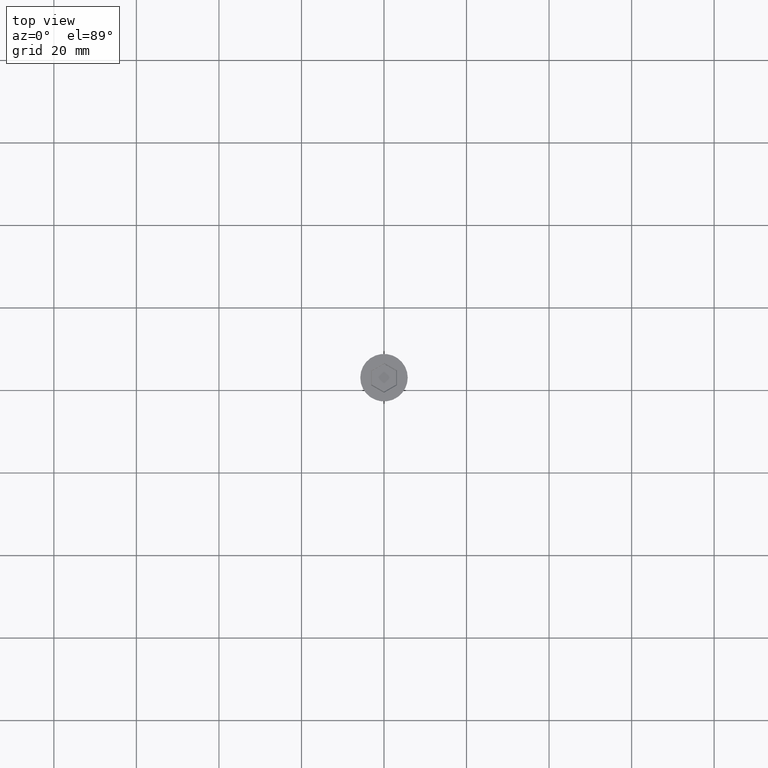
[diagram: clean part render]
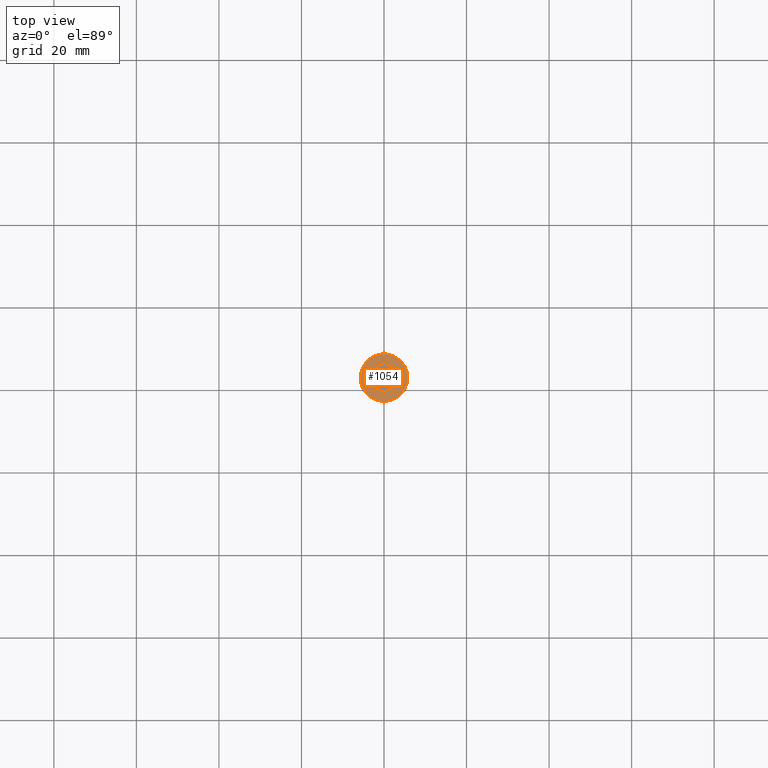
[diagram: same view with one face highlighted and labeled with its STEP entity id]
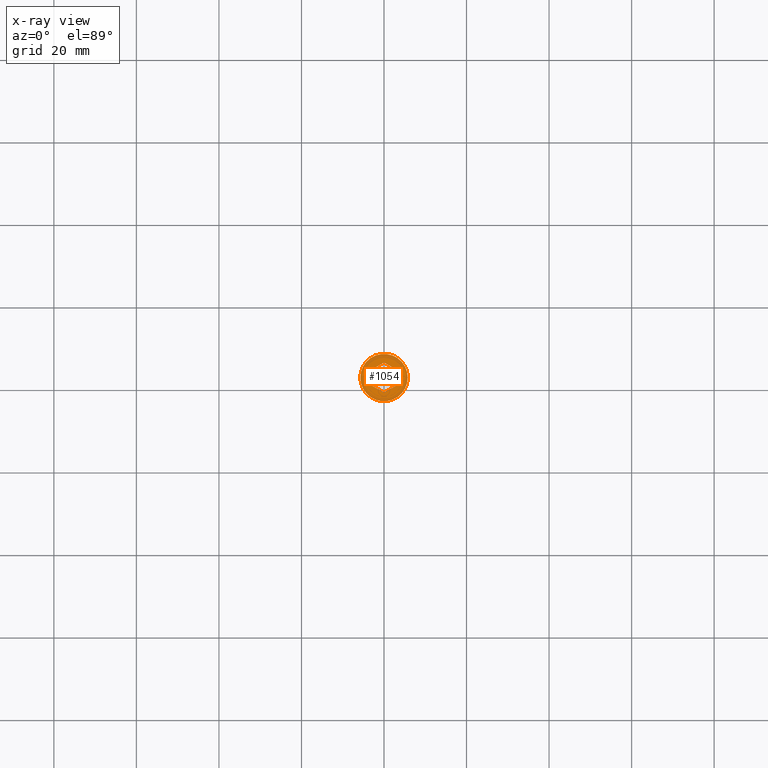
[diagram: x-ray of the same camera — body ghosted, the highlighted face saturated]
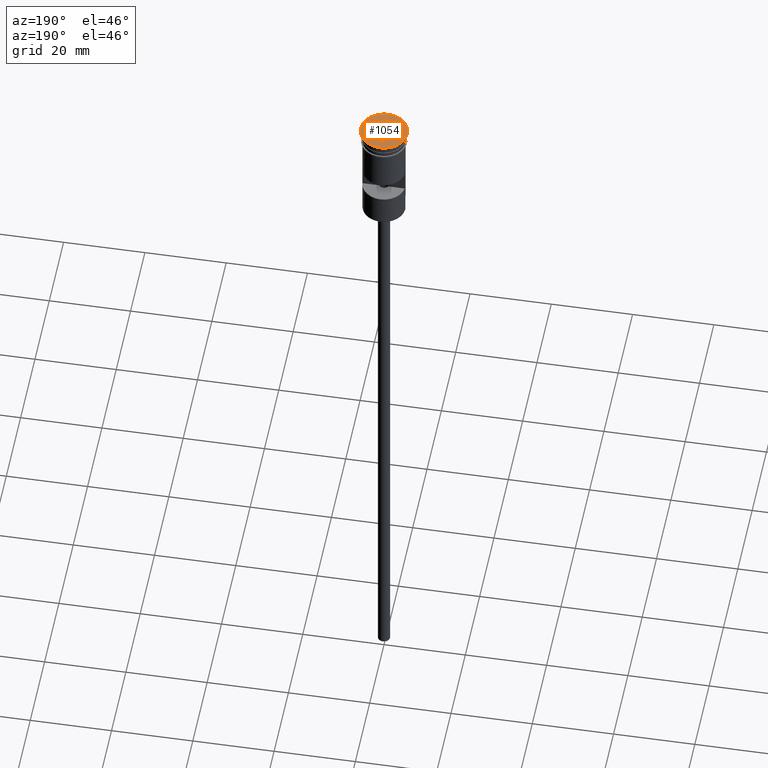
[diagram: same view with one face highlighted and labeled with its STEP entity id]
A machine part, top view. The second image highlights one B-rep face of the part: STEP entity #1054.
The next image is the same camera in x-ray: the body ghosted, the highlighted face saturated — about 0% of this face is hidden behind the body in this view.
A second angle (auxiliary view) of the same face is appended — the face is thin or edge-on in the first view.
In plain terms, the highlighted planar face has unit normal (0, -0, 1).
Its self-contained STEP definition (entity closure, byte-faithful):
#26 = CARTESIAN_POINT ( 'NONE',  ( -0.09999999999998934741, 3.579571668975661147, 0.000000000000000000 ) ) ;
#49 = CARTESIAN_POINT ( 'NONE',  ( -3.149999999999978595, 1.703183294109395840, 0.000000000000000000 ) ) ;
#56 = DIRECTION ( 'NONE',  ( -2.546295930062981593E-16, -1.000000000000000000, 0.000000000000000000 ) ) ;
#97 = CARTESIAN_POINT ( 'NONE',  ( -3.149999999999978595, 1.818653347947308374, 0.000000000000000000 ) ) ;
#118 = VERTEX_POINT ( 'NONE', #1156 ) ;
#129 = DIRECTION ( 'NONE',  ( 1.000000000000000000, 0.000000000000000000, 0.000000000000000000 ) ) ;
#142 = EDGE_CURVE ( 'NONE', #1530, #741, #1259, .T. ) ;
#145 = CARTESIAN_POINT ( 'NONE',  ( -3.095704393061636416E-16, 3.637306695894617192, 0.000000000000000000 ) ) ;
#167 = AXIS2_PLACEMENT_3D ( 'NONE', #602, #1574, #952 ) ;
#172 = CARTESIAN_POINT ( 'NONE',  ( 3.049999999999990052, 1.876388374866264863, 0.000000000000000000 ) ) ;
#190 = DIRECTION ( 'NONE',  ( 1.000000000000000000, 0.000000000000000000, 0.000000000000000000 ) ) ;
#191 = VECTOR ( 'NONE', #351, 1000.000000000000000 ) ;
#206 = CARTESIAN_POINT ( 'NONE',  ( 5.750000000000000000, 0.000000000000000000, 0.000000000000000000 ) ) ;
#229 = EDGE_CURVE ( 'NONE', #1327, #773, #403, .T. ) ;
#246 = ORIENTED_EDGE ( 'NONE', *, *, #1396, .T. ) ;
#259 = CARTESIAN_POINT ( 'NONE',  ( -5.750000000000000000, 7.041719095097280880E-16, 0.000000000000000000 ) ) ;
#311 = CARTESIAN_POINT ( 'NONE',  ( 0.000000000000000000, 0.000000000000000000, 0.000000000000000000 ) ) ;
#335 = CARTESIAN_POINT ( 'NONE',  ( 0.09999999999998882005, -3.579571668975661591, 0.000000000000000000 ) ) ;
#342 = VECTOR ( 'NONE', #1114, 1000.000000000000114 ) ;
#351 = DIRECTION ( 'NONE',  ( -0.8660254037844387076, -0.4999999999999998890, 0.000000000000000000 ) ) ;
#389 = VECTOR ( 'NONE', #1016, 1000.000000000000114 ) ;
#403 = LINE ( 'NONE', #172, #1192 ) ;
#415 = EDGE_LOOP ( 'NONE', ( #793, #1298 ) ) ;
#459 = CARTESIAN_POINT ( 'NONE',  ( 3.149999999999979039, 1.818653347947308596, 0.000000000000000000 ) ) ;
#483 = ORIENTED_EDGE ( 'NONE', *, *, #229, .T. ) ;
#512 = VERTEX_POINT ( 'NONE', #259 ) ;
#517 = VECTOR ( 'NONE', #1288, 1000.000000000000000 ) ;
#589 = EDGE_LOOP ( 'NONE', ( #1487, #920, #1283, #483, #246, #1066 ) ) ;
#602 = CARTESIAN_POINT ( 'NONE',  ( 0.000000000000000000, 0.000000000000000000, 0.000000000000000000 ) ) ;
#620 = CARTESIAN_POINT ( 'NONE',  ( -3.049999999999989608, -1.876388374866265085, 0.000000000000000000 ) ) ;
#665 = DIRECTION ( 'NONE',  ( 0.8660254037844387076, -0.4999999999999998890, 0.000000000000000000 ) ) ;
#684 = CARTESIAN_POINT ( 'NONE',  ( -4.546348829811041408E-16, -3.637306695894617636, 0.000000000000000000 ) ) ;
#697 = EDGE_CURVE ( 'NONE', #118, #1057, #1217, .T. ) ;
#704 = EDGE_CURVE ( 'NONE', #512, #1152, #709, .T. ) ;
#709 = CIRCLE ( 'NONE', #167, 5.750000000000000000 ) ;
#734 = AXIS2_PLACEMENT_3D ( 'NONE', #311, #805, #190 ) ;
#741 = VERTEX_POINT ( 'NONE', #97 ) ;
#773 = VERTEX_POINT ( 'NONE', #459 ) ;
#793 = ORIENTED_EDGE ( 'NONE', *, *, #887, .T. ) ;
#805 = DIRECTION ( 'NONE',  ( 0.000000000000000000, -0.000000000000000000, 1.000000000000000000 ) ) ;
#821 = CARTESIAN_POINT ( 'NONE',  ( -3.149999999999978595, -1.818653347947308818, 0.000000000000000000 ) ) ;
#863 = AXIS2_PLACEMENT_3D ( 'NONE', #1388, #1356, #129 ) ;
#887 = EDGE_CURVE ( 'NONE', #1152, #512, #1349, .T. ) ;
#892 = LINE ( 'NONE', #620, #342 ) ;
#894 = VECTOR ( 'NONE', #56, 1000.000000000000000 ) ;
#920 = ORIENTED_EDGE ( 'NONE', *, *, #142, .T. ) ;
#932 = EDGE_CURVE ( 'NONE', #741, #1327, #1132, .T. ) ;
#934 = EDGE_CURVE ( 'NONE', #1057, #1530, #892, .T. ) ;
#952 = DIRECTION ( 'NONE',  ( 1.000000000000000000, 0.000000000000000000, 0.000000000000000000 ) ) ;
#1016 = DIRECTION ( 'NONE',  ( 0.8660254037844385966, 0.5000000000000001110, 0.000000000000000000 ) ) ;
#1032 = CARTESIAN_POINT ( 'NONE',  ( 3.149999999999978151, -1.703183294109396284, 0.000000000000000000 ) ) ;
#1054 = ADVANCED_FACE ( 'NONE', ( #1538, #1166 ), #1297, .T. ) ;
#1057 = VERTEX_POINT ( 'NONE', #684 ) ;
#1066 = ORIENTED_EDGE ( 'NONE', *, *, #697, .T. ) ;
#1114 = DIRECTION ( 'NONE',  ( -0.8660254037844385966, 0.5000000000000001110, 0.000000000000000000 ) ) ;
#1132 = LINE ( 'NONE', #26, #389 ) ;
#1152 = VERTEX_POINT ( 'NONE', #206 ) ;
#1156 = CARTESIAN_POINT ( 'NONE',  ( 3.149999999999978151, -1.818653347947309484, 0.000000000000000000 ) ) ;
#1166 = FACE_OUTER_BOUND ( 'NONE', #415, .T. ) ;
#1192 = VECTOR ( 'NONE', #665, 1000.000000000000000 ) ;
#1217 = LINE ( 'NONE', #335, #191 ) ;
#1259 = LINE ( 'NONE', #49, #517 ) ;
#1283 = ORIENTED_EDGE ( 'NONE', *, *, #932, .T. ) ;
#1288 = DIRECTION ( 'NONE',  ( 0.000000000000000000, 1.000000000000000000, 0.000000000000000000 ) ) ;
#1297 = PLANE ( 'NONE',  #734 ) ;
#1298 = ORIENTED_EDGE ( 'NONE', *, *, #704, .T. ) ;
#1327 = VERTEX_POINT ( 'NONE', #145 ) ;
#1349 = CIRCLE ( 'NONE', #863, 5.750000000000000000 ) ;
#1356 = DIRECTION ( 'NONE',  ( -0.000000000000000000, -0.000000000000000000, 1.000000000000000000 ) ) ;
#1388 = CARTESIAN_POINT ( 'NONE',  ( 0.000000000000000000, 0.000000000000000000, 0.000000000000000000 ) ) ;
#1396 = EDGE_CURVE ( 'NONE', #773, #118, #1512, .T. ) ;
#1487 = ORIENTED_EDGE ( 'NONE', *, *, #934, .T. ) ;
#1512 = LINE ( 'NONE', #1032, #894 ) ;
#1530 = VERTEX_POINT ( 'NONE', #821 ) ;
#1538 = FACE_BOUND ( 'NONE', #589, .T. ) ;
#1574 = DIRECTION ( 'NONE',  ( -0.000000000000000000, -0.000000000000000000, 1.000000000000000000 ) ) ;